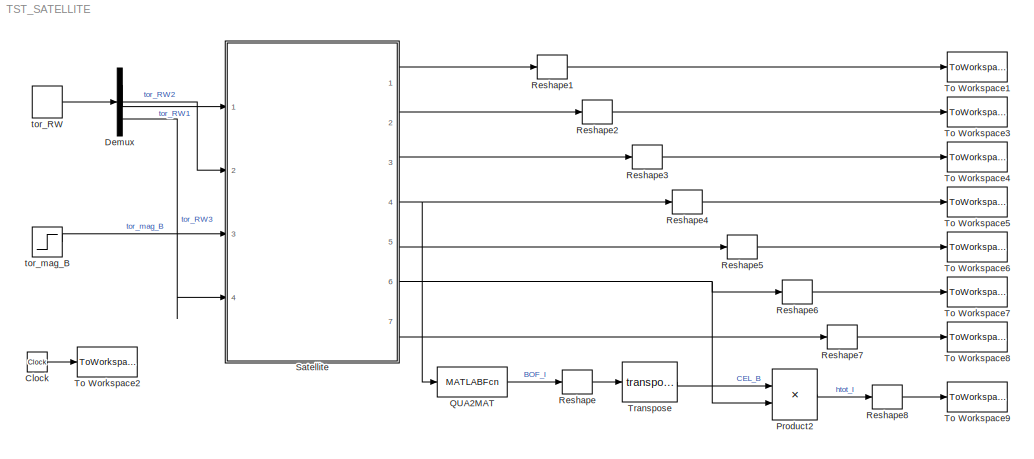
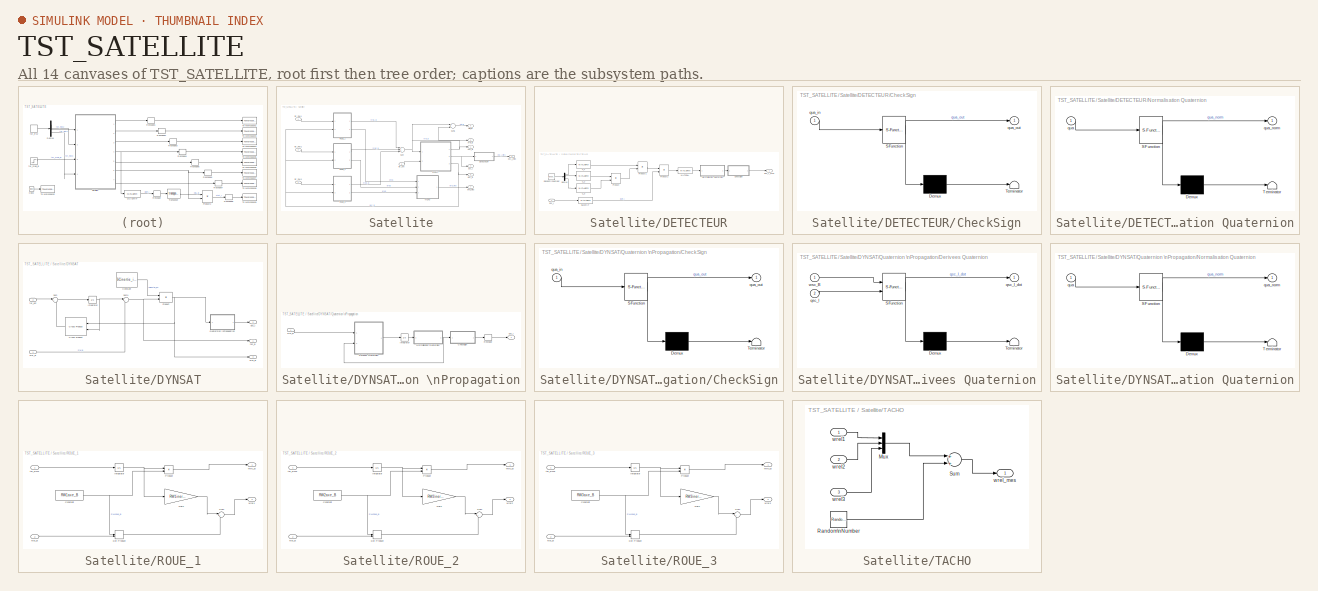
[diagram: thumbnail index - all 14 canvases of the model, root first then tree order]
MODEL TST_SATELLITE
KIND model
BLOCK [Clock] Clock
  SID = 114
BLOCK [Demux] Demux
  DisplayOption = bar
  Outputs = 3
  Ports = [1, 3]
  SID = 156
BLOCK [Product] Product2
  InputSameDT = off
  Multiplication = Matrix(*)
  OutDataTypeStr = Inherit: Inherit via internal rule
  Ports = [2, 1]
  SID = 151
  SaturateOnIntegerOverflow = off
BLOCK [MATLABFcn] QUA2MAT
  MATLABFcn = LIB_QUA_QUA2MAT
  Output1D = off
  Ports = [1, 1]
  SID = 149
BLOCK [Reshape] Reshape
  OutputDimensionality = Customize
  OutputDimensions = [3,3]
  Ports = [1, 1]
  SID = 153
BLOCK [Reshape] Reshape1
  Ports = [1, 1]
  SID = 165
BLOCK [Reshape] Reshape2
  Ports = [1, 1]
  SID = 166
BLOCK [Reshape] Reshape3
  Ports = [1, 1]
  SID = 167
BLOCK [Reshape] Reshape4
  Ports = [1, 1]
  SID = 168
BLOCK [Reshape] Reshape5
  Ports = [1, 1]
  SID = 169
BLOCK [Reshape] Reshape6
  Ports = [1, 1]
  SID = 170
BLOCK [Reshape] Reshape7
  Ports = [1, 1]
  SID = 171
BLOCK [Reshape] Reshape8
  Ports = [1, 1]
  SID = 172
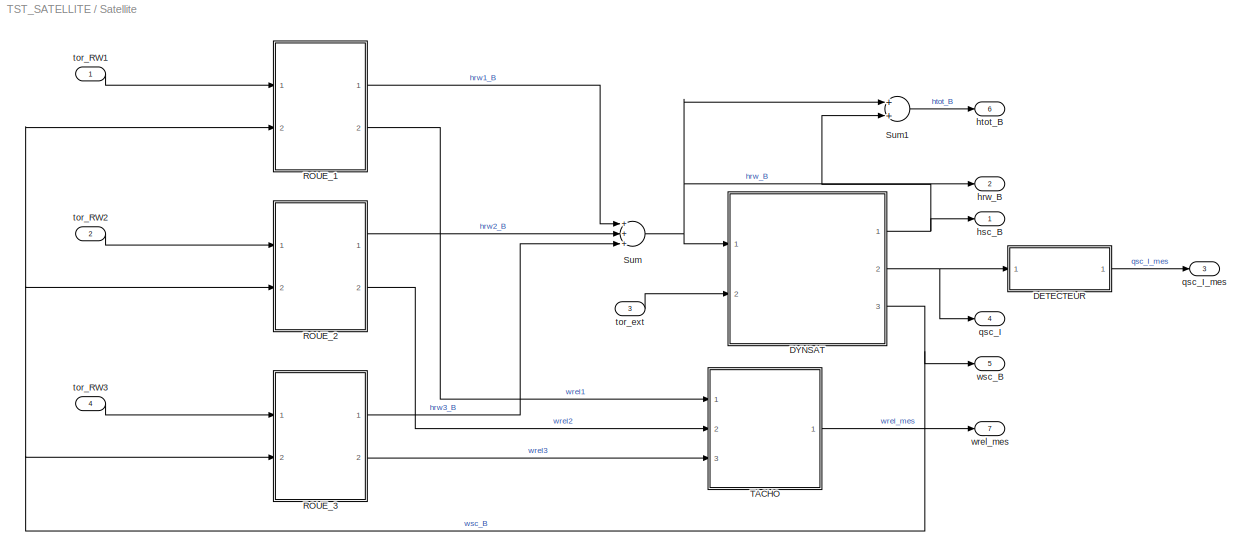
BLOCK [SubSystem] Satellite
  Ports = [4, 7]
  RequestExecContextInheritance = off
  SID = 137
  Variant = off
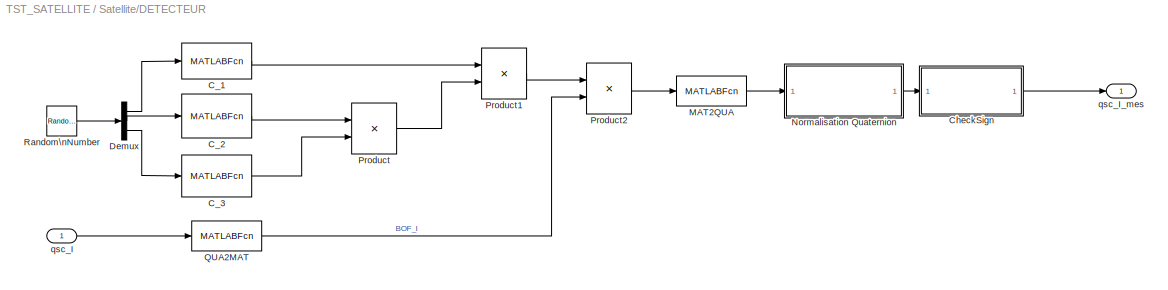
BLOCK [SubSystem] Satellite/DETECTEUR
  Ports = [1, 1]
  RequestExecContextInheritance = off
  SID = 88
  Variant = off
BLOCK [MATLABFcn] Satellite/DETECTEUR/C_1
  MATLABFcn = C_1
  Output1D = off
  OutputDimensions = [3,3]
  Ports = [1, 1]
  SID = 93
BLOCK [MATLABFcn] Satellite/DETECTEUR/C_2
  MATLABFcn = C_2
  Output1D = off
  OutputDimensions = [3,3]
  Ports = [1, 1]
  SID = 95
BLOCK [MATLABFcn] Satellite/DETECTEUR/C_3
  MATLABFcn = C_3
  Output1D = off
  OutputDimensions = [3,3]
  Ports = [1, 1]
  SID = 94
BLOCK [SubSystem] Satellite/DETECTEUR/CheckSign
  ErrorFcn = Stateflow.Translate.translate
  PermitHierarchicalResolution = ParametersOnly
  Ports = [1, 1]
  RequestExecContextInheritance = off
  SFBlockType = MATLAB Function
  SID = 103
  TreatAsAtomicUnit = on
  Variant = off
BLOCK [Demux] Satellite/DETECTEUR/CheckSign/ Demux 
  Outputs = 1
  Ports = [1, 1]
  SID = 103::22
BLOCK [S-Function] Satellite/DETECTEUR/CheckSign/ SFunction 
  EnableBusSupport = on
  FunctionName = sf_sfun
  PortCounts = [1 2]
  Ports = [1, 2]
  SFunctionDeploymentMode = off
  SID = 103::21
  Tag = Stateflow S-Function TST_SATELLITE 4
BLOCK [Terminator] Satellite/DETECTEUR/CheckSign/ Terminator 
  SID = 103::23
BLOCK [Inport] Satellite/DETECTEUR/CheckSign/qua_in
  IconDisplay = Port number
  SID = 103::1
BLOCK [Outport] Satellite/DETECTEUR/CheckSign/qua_out
  IconDisplay = Port number
  SID = 103::5
BLOCK [Demux] Satellite/DETECTEUR/Demux
  DisplayOption = bar
  Outputs = 3
  Ports = [1, 3]
  SID = 96
BLOCK [MATLABFcn] Satellite/DETECTEUR/MAT2QUA
  MATLABFcn = LIB_QUA_MAT2QUA
  Output1D = off
  OutputDimensions = [4,1]
  Ports = [1, 1]
  SID = 102
BLOCK [SubSystem] Satellite/DETECTEUR/Normalisation Quaternion
  ErrorFcn = Stateflow.Translate.translate
  PermitHierarchicalResolution = ParametersOnly
  Ports = [1, 1]
  RequestExecContextInheritance = off
  SFBlockType = MATLAB Function
  SID = 117
  TreatAsAtomicUnit = on
  Variant = off
BLOCK [Demux] Satellite/DETECTEUR/Normalisation Quaternion/ Demux 
  Outputs = 1
  Ports = [1, 1]
  SID = 117::22
BLOCK [S-Function] Satellite/DETECTEUR/Normalisation Quaternion/ SFunction 
  EnableBusSupport = on
  FunctionName = sf_sfun
  PortCounts = [1 2]
  Ports = [1, 2]
  SFunctionDeploymentMode = off
  SID = 117::21
  Tag = Stateflow S-Function TST_SATELLITE 5
BLOCK [Terminator] Satellite/DETECTEUR/Normalisation Quaternion/ Terminator 
  SID = 117::23
BLOCK [Inport] Satellite/DETECTEUR/Normalisation Quaternion/qua
  IconDisplay = Port number
  SID = 117::1
BLOCK [Outport] Satellite/DETECTEUR/Normalisation Quaternion/qua_norm
  IconDisplay = Port number
  SID = 117::5
BLOCK [Product] Satellite/DETECTEUR/Product
  InputSameDT = off
  Multiplication = Matrix(*)
  OutDataTypeStr = Inherit: Inherit via internal rule
  Ports = [2, 1]
  SID = 97
  SaturateOnIntegerOverflow = off
BLOCK [Product] Satellite/DETECTEUR/Product1
  InputSameDT = off
  Multiplication = Matrix(*)
  OutDataTypeStr = Inherit: Inherit via internal rule
  Ports = [2, 1]
  SID = 98
  SaturateOnIntegerOverflow = off
BLOCK [Product] Satellite/DETECTEUR/Product2
  InputSameDT = off
  Multiplication = Matrix(*)
  OutDataTypeStr = Inherit: Inherit via internal rule
  Ports = [2, 1]
  SID = 100
  SaturateOnIntegerOverflow = off
BLOCK [MATLABFcn] Satellite/DETECTEUR/QUA2MAT
  MATLABFcn = LIB_QUA_QUA2MAT
  Output1D = off
  OutputDimensions = [3,3]
  Ports = [1, 1]
  SID = 99
BLOCK [RandomNumber] Satellite/DETECTEUR/Random\nNumber
  Mean = [0, 0, 0]
  SID = 92
  SampleTime = 0.01
  Seed = [293343544, 2098503295, 0394802]
  Variance = [1, 1, 1]/1000
  VectorParams1D = off
BLOCK [Inport] Satellite/DETECTEUR/qsc_I
  IconDisplay = Port number
  SID = 89
BLOCK [Outport] Satellite/DETECTEUR/qsc_I_mes
  IconDisplay = Port number
  SID = 90
BLOCK [SubSystem] Satellite/DYNSAT
  Ports = [2, 3]
  RequestExecContextInheritance = off
  SID = 61
  Variant = off
BLOCK [Constant] Satellite/DYNSAT/Constant
  SID = 68
  Value = SCinertie_inv
  VectorParams1D = off
BLOCK [Reference] Satellite/DYNSAT/Cross Product  REF=vrlib/Utilities/Cross Product
  Ports = [2, 1]
  SID = 175
  SourceBlock = vrlib/Utilities/Cross Product
  SourceType = Cross Product
BLOCK [Integrator] Satellite/DYNSAT/Integrator
  InitialCondition = htot_B_ini
  Ports = [1, 1]
  SID = 191
BLOCK [Product] Satellite/DYNSAT/Product
  InputSameDT = off
  Multiplication = Matrix(*)
  OutDataTypeStr = Inherit: Inherit via internal rule
  Ports = [2, 1]
  RndMeth = Floor
  SID = 193
  SaturateOnIntegerOverflow = off
BLOCK [SubSystem] Satellite/DYNSAT/Quaternion \nPropagation
  Ports = [1, 1]
  RequestExecContextInheritance = off
  SID = 72
  Variant = off
BLOCK [SubSystem] Satellite/DYNSAT/Quaternion \nPropagation/CheckSign
  ErrorFcn = Stateflow.Translate.translate
  PermitHierarchicalResolution = ParametersOnly
  Ports = [1, 1]
  RequestExecContextInheritance = off
  SFBlockType = MATLAB Function
  SID = 82
  TreatAsAtomicUnit = on
  Variant = off
BLOCK [Demux] Satellite/DYNSAT/Quaternion \nPropagation/CheckSign/ Demux 
  Outputs = 1
  Ports = [1, 1]
  SID = 82::22
BLOCK [S-Function] Satellite/DYNSAT/Quaternion \nPropagation/CheckSign/ SFunction 
  EnableBusSupport = on
  FunctionName = sf_sfun
  PortCounts = [1 2]
  Ports = [1, 2]
  SFunctionDeploymentMode = off
  SID = 82::21
  Tag = Stateflow S-Function TST_SATELLITE 3
BLOCK [Terminator] Satellite/DYNSAT/Quaternion \nPropagation/CheckSign/ Terminator 
  SID = 82::23
BLOCK [Inport] Satellite/DYNSAT/Quaternion \nPropagation/CheckSign/qua_in
  IconDisplay = Port number
  SID = 82::1
BLOCK [Outport] Satellite/DYNSAT/Quaternion \nPropagation/CheckSign/qua_out
  IconDisplay = Port number
  SID = 82::5
BLOCK [SubSystem] Satellite/DYNSAT/Quaternion \nPropagation/Derivees Quaternion
  ErrorFcn = Stateflow.Translate.translate
  PermitHierarchicalResolution = ParametersOnly
  Ports = [2, 1]
  RequestExecContextInheritance = off
  SFBlockType = MATLAB Function
  SID = 78
  TreatAsAtomicUnit = on
  Variant = off
BLOCK [Demux] Satellite/DYNSAT/Quaternion \nPropagation/Derivees Quaternion/ Demux 
  Outputs = 1
  Ports = [1, 1]
  SID = 78::23
BLOCK [S-Function] Satellite/DYNSAT/Quaternion \nPropagation/Derivees Quaternion/ SFunction 
  EnableBusSupport = on
  FunctionName = sf_sfun
  PortCounts = [2 2]
  Ports = [2, 2]
  SFunctionDeploymentMode = off
  SID = 78::22
  Tag = Stateflow S-Function TST_SATELLITE 2
BLOCK [Terminator] Satellite/DYNSAT/Quaternion \nPropagation/Derivees Quaternion/ Terminator 
  SID = 78::24
BLOCK [Inport] Satellite/DYNSAT/Quaternion \nPropagation/Derivees Quaternion/qsc_I
  IconDisplay = Port number
  Port = 2
  SID = 78::18
BLOCK [Outport] Satellite/DYNSAT/Quaternion \nPropagation/Derivees Quaternion/qsc_I_dot
  IconDisplay = Port number
  SID = 78::5
BLOCK [Inport] Satellite/DYNSAT/Quaternion \nPropagation/Derivees Quaternion/wsc_B
  IconDisplay = Port number
  SID = 78::1
BLOCK [Integrator] Satellite/DYNSAT/Quaternion \nPropagation/Integrator
  InitialCondition = qsc_I_ini
  Ports = [1, 1]
  SID = 77
BLOCK [SubSystem] Satellite/DYNSAT/Quaternion \nPropagation/Normalisation Quaternion
  ErrorFcn = Stateflow.Translate.translate
  PermitHierarchicalResolution = ParametersOnly
  Ports = [1, 1]
  RequestExecContextInheritance = off
  SFBlockType = MATLAB Function
  SID = 81
  TreatAsAtomicUnit = on
  Variant = off
BLOCK [Demux] Satellite/DYNSAT/Quaternion \nPropagation/Normalisation Quaternion/ Demux 
  Outputs = 1
  Ports = [1, 1]
  SID = 81::22
BLOCK [S-Function] Satellite/DYNSAT/Quaternion \nPropagation/Normalisation Quaternion/ SFunction 
  EnableBusSupport = on
  FunctionName = sf_sfun
  PortCounts = [1 2]
  Ports = [1, 2]
  SFunctionDeploymentMode = off
  SID = 81::21
  Tag = Stateflow S-Function TST_SATELLITE 1
BLOCK [Terminator] Satellite/DYNSAT/Quaternion \nPropagation/Normalisation Quaternion/ Terminator 
  SID = 81::23
BLOCK [Inport] Satellite/DYNSAT/Quaternion \nPropagation/Normalisation Quaternion/qua
  IconDisplay = Port number
  SID = 81::1
BLOCK [Outport] Satellite/DYNSAT/Quaternion \nPropagation/Normalisation Quaternion/qua_norm
  IconDisplay = Port number
  SID = 81::5
BLOCK [Reshape] Satellite/DYNSAT/Quaternion \nPropagation/Reshape
  OutputDimensionality = Column vector (2-D)
  Ports = [1, 1]
  SID = 80
BLOCK [Outport] Satellite/DYNSAT/Quaternion \nPropagation/qsc_I
  IconDisplay = Port number
  SID = 74
BLOCK [Inport] Satellite/DYNSAT/Quaternion \nPropagation/wsc_B
  IconDisplay = Port number
  SID = 73
BLOCK [Sum] Satellite/DYNSAT/Sum
  IconShape = round
  InputSameDT = off
  Inputs = |+-
  OutDataTypeStr = Inherit: Inherit via internal rule
  Ports = [2, 1]
  SID = 190
  SaturateOnIntegerOverflow = off
BLOCK [Sum] Satellite/DYNSAT/Sum1
  IconShape = round
  InputSameDT = off
  Inputs = |+-
  OutDataTypeStr = Inherit: Inherit via internal rule
  Ports = [2, 1]
  SID = 192
  SaturateOnIntegerOverflow = off
BLOCK [Inport] Satellite/DYNSAT/hrw_B
  IconDisplay = Port number
  SID = 62
BLOCK [Outport] Satellite/DYNSAT/hsc_B
  IconDisplay = Port number
  SID = 63
BLOCK [Outport] Satellite/DYNSAT/qsc_I
  IconDisplay = Port number
  Port = 2
  SID = 83
BLOCK [Inport] Satellite/DYNSAT/tor_ext
  IconDisplay = Port number
  Port = 2
  SID = 65
BLOCK [Outport] Satellite/DYNSAT/wsc_B
  IconDisplay = Port number
  Port = 3
  SID = 84
BLOCK [SubSystem] Satellite/ROUE_1
  Ports = [2, 2]
  RequestExecContextInheritance = off
  SID = 12
  Variant = off
BLOCK [Constant] Satellite/ROUE_1/Constant
  SID = 2
  Value = RW1axe_B
  VectorParams1D = off
BLOCK [DotProduct] Satellite/ROUE_1/Dot Product
  OutDataTypeStr = Inherit: Inherit via internal rule
  SID = 177
BLOCK [Gain] Satellite/ROUE_1/Gain
  Gain = RW1inertie_inv
  OutDataTypeStr = Inherit: Inherit via internal rule
  ParamDataTypeStr = Inherit: Inherit via internal rule
  SID = 4
  SaturateOnIntegerOverflow = off
BLOCK [Integrator] Satellite/ROUE_1/Integrator
  InitialCondition = hrw1_ini
  Ports = [1, 1]
  SID = 176
BLOCK [Product] Satellite/ROUE_1/Product
  InputSameDT = off
  OutDataTypeStr = Inherit: Inherit via internal rule
  Ports = [2, 1]
  RndMeth = Floor
  SID = 178
  SaturateOnIntegerOverflow = off
BLOCK [Sum] Satellite/ROUE_1/Sum
  IconShape = round
  InputSameDT = off
  Inputs = |+-
  OutDataTypeStr = Inherit: Inherit via internal rule
  Ports = [2, 1]
  SID = 179
  SaturateOnIntegerOverflow = off
BLOCK [Outport] Satellite/ROUE_1/hrw1_B
  IconDisplay = Port number
  SID = 13
BLOCK [Inport] Satellite/ROUE_1/tor_RW1
  IconDisplay = Port number
  SID = 14
BLOCK [Outport] Satellite/ROUE_1/wrel1
  IconDisplay = Port number
  Port = 2
  SID = 15
BLOCK [Inport] Satellite/ROUE_1/wsc_B
  IconDisplay = Port number
  Port = 2
  PortDimensions = [3,1]
  SID = 16
BLOCK [SubSystem] Satellite/ROUE_2
  Ports = [2, 2]
  RequestExecContextInheritance = off
  SID = 19
  Variant = off
BLOCK [Constant] Satellite/ROUE_2/Constant
  SID = 22
  Value = RW2axe_B
  VectorParams1D = off
BLOCK [DotProduct] Satellite/ROUE_2/Dot Product
  OutDataTypeStr = Inherit: Inherit via internal rule
  SID = 180
BLOCK [Gain] Satellite/ROUE_2/Gain
  Gain = RW2inertie_inv
  OutDataTypeStr = Inherit: Inherit via internal rule
  ParamDataTypeStr = Inherit: Inherit via internal rule
  SID = 24
  SaturateOnIntegerOverflow = off
BLOCK [Integrator] Satellite/ROUE_2/Integrator
  InitialCondition = hrw2_ini
  Ports = [1, 1]
  SID = 182
BLOCK [Product] Satellite/ROUE_2/Product
  InputSameDT = off
  OutDataTypeStr = Inherit: Inherit via internal rule
  Ports = [2, 1]
  RndMeth = Floor
  SID = 183
  SaturateOnIntegerOverflow = off
BLOCK [Sum] Satellite/ROUE_2/Sum
  IconShape = round
  InputSameDT = off
  Inputs = |+-
  OutDataTypeStr = Inherit: Inherit via internal rule
  Ports = [2, 1]
  SID = 184
  SaturateOnIntegerOverflow = off
BLOCK [Outport] Satellite/ROUE_2/hrw2_B
  IconDisplay = Port number
  SID = 28
BLOCK [Inport] Satellite/ROUE_2/tor_RW2
  IconDisplay = Port number
  SID = 20
BLOCK [Outport] Satellite/ROUE_2/wrel2
  IconDisplay = Port number
  Port = 2
  SID = 29
BLOCK [Inport] Satellite/ROUE_2/wsc_B
  IconDisplay = Port number
  Port = 2
  PortDimensions = [3,1]
  SID = 21
BLOCK [SubSystem] Satellite/ROUE_3
  Ports = [2, 2]
  RequestExecContextInheritance = off
  SID = 34
  Variant = off
BLOCK [Constant] Satellite/ROUE_3/Constant
  SID = 37
  Value = RW3axe_B
  VectorParams1D = off
BLOCK [DotProduct] Satellite/ROUE_3/Dot Product
  OutDataTypeStr = Inherit: Inherit via internal rule
  SID = 185
BLOCK [Gain] Satellite/ROUE_3/Gain
  Gain = RW3inertie_inv
  OutDataTypeStr = Inherit: Inherit via internal rule
  ParamDataTypeStr = Inherit: Inherit via internal rule
  SID = 39
  SaturateOnIntegerOverflow = off
BLOCK [Integrator] Satellite/ROUE_3/Integrator
  InitialCondition = hrw3_ini
  Ports = [1, 1]
  SID = 187
BLOCK [Product] Satellite/ROUE_3/Product
  InputSameDT = off
  OutDataTypeStr = Inherit: Inherit via internal rule
  Ports = [2, 1]
  RndMeth = Floor
  SID = 188
  SaturateOnIntegerOverflow = off
BLOCK [Sum] Satellite/ROUE_3/Sum
  IconShape = round
  InputSameDT = off
  Inputs = |+-
  OutDataTypeStr = Inherit: Inherit via internal rule
  Ports = [2, 1]
  SID = 189
  SaturateOnIntegerOverflow = off
BLOCK [Outport] Satellite/ROUE_3/hrw3_B
  IconDisplay = Port number
  SID = 43
BLOCK [Inport] Satellite/ROUE_3/tor_RW3
  IconDisplay = Port number
  SID = 35
BLOCK [Outport] Satellite/ROUE_3/wrel3
  IconDisplay = Port number
  Port = 2
  SID = 44
BLOCK [Inport] Satellite/ROUE_3/wsc_B
  IconDisplay = Port number
  Port = 2
  PortDimensions = [3,1]
  SID = 36
BLOCK [Sum] Satellite/Sum
  InputSameDT = off
  Inputs = +++
  OutDataTypeStr = Inherit: Inherit via internal rule
  Ports = [3, 1]
  SID = 47
  SaturateOnIntegerOverflow = off
BLOCK [Sum] Satellite/Sum1
  InputSameDT = off
  OutDataTypeStr = Inherit: Inherit via internal rule
  Ports = [2, 1]
  SID = 85
  SaturateOnIntegerOverflow = off
BLOCK [SubSystem] Satellite/TACHO
  Ports = [3, 1]
  RequestExecContextInheritance = off
  SID = 48
  Variant = off
BLOCK [Mux] Satellite/TACHO/Mux
  DisplayOption = bar
  Inputs = 3
  Ports = [3, 1]
  SID = 59
BLOCK [RandomNumber] Satellite/TACHO/Random\nNumber
  Mean = [0, 0, 0]
  SID = 57
  SampleTime = 0.1
  Seed = [293343544, 2098503295, 0394802]
  Variance = [1, 1, 1]
BLOCK [Sum] Satellite/TACHO/Sum
  InputSameDT = off
  OutDataTypeStr = Inherit: Inherit via internal rule
  Ports = [2, 1]
  SID = 58
  SaturateOnIntegerOverflow = off
BLOCK [Inport] Satellite/TACHO/wrel1
  IconDisplay = Port number
  SID = 49
BLOCK [Inport] Satellite/TACHO/wrel2
  IconDisplay = Port number
  Port = 2
  SID = 51
BLOCK [Inport] Satellite/TACHO/wrel3
  IconDisplay = Port number
  Port = 3
  SID = 52
BLOCK [Outport] Satellite/TACHO/wrel_mes
  IconDisplay = Port number
  SID = 50
BLOCK [Outport] Satellite/hrw_B
  IconDisplay = Port number
  Port = 2
  SID = 140
BLOCK [Outport] Satellite/hsc_B
  IconDisplay = Port number
  SID = 139
BLOCK [Outport] Satellite/htot_B
  IconDisplay = Port number
  Port = 6
  SID = 146
BLOCK [Outport] Satellite/qsc_I
  IconDisplay = Port number
  Port = 4
  SID = 144
BLOCK [Outport] Satellite/qsc_I_mes
  IconDisplay = Port number
  Port = 3
  SID = 142
BLOCK [Inport] Satellite/tor_RW1
  IconDisplay = Port number
  SID = 138
BLOCK [Inport] Satellite/tor_RW2
  IconDisplay = Port number
  Port = 2
  SID = 141
BLOCK [Inport] Satellite/tor_RW3
  IconDisplay = Port number
  Port = 4
  SID = 147
BLOCK [Inport] Satellite/tor_ext
  IconDisplay = Port number
  Port = 3
  PortDimensions = [3,1]
  SID = 143
BLOCK [Outport] Satellite/wrel_mes
  IconDisplay = Port number
  Port = 7
  SID = 148
BLOCK [Outport] Satellite/wsc_B
  IconDisplay = Port number
  Port = 5
  SID = 145
BLOCK [ToWorkspace] To Workspace1
  MaxDataPoints = inf
  Ports = [1]
  SID = 157
  SampleTime = -1
  VariableName = hsc_B
BLOCK [ToWorkspace] To Workspace2
  MaxDataPoints = inf
  Ports = [1]
  SID = 115
  SampleTime = -1
  VariableName = stime
BLOCK [ToWorkspace] To Workspace3
  MaxDataPoints = inf
  Ports = [1]
  SID = 158
  SampleTime = -1
  VariableName = hrw_B
BLOCK [ToWorkspace] To Workspace4
  MaxDataPoints = inf
  Ports = [1]
  SID = 159
  SampleTime = -1
  VariableName = qsc_I_mes
BLOCK [ToWorkspace] To Workspace5
  MaxDataPoints = inf
  Ports = [1]
  SID = 160
  SampleTime = -1
  VariableName = qsc_I
BLOCK [ToWorkspace] To Workspace6
  MaxDataPoints = inf
  Ports = [1]
  SID = 161
  SampleTime = -1
  VariableName = wsc_B
BLOCK [ToWorkspace] To Workspace7
  MaxDataPoints = inf
  Ports = [1]
  SID = 162
  SampleTime = -1
  VariableName = htot_B
BLOCK [ToWorkspace] To Workspace8
  MaxDataPoints = inf
  Ports = [1]
  SID = 163
  SampleTime = -1
  VariableName = wrel_mes
BLOCK [ToWorkspace] To Workspace9
  MaxDataPoints = inf
  Ports = [1]
  SID = 164
  SampleTime = -1
  VariableName = htot_I
BLOCK [Math] Transpose 
  Operator = transpose
  Ports = [1, 1]
  SID = 150
BLOCK [DiscretePulseGenerator] tor_RW
  Amplitude = [0.04, -0.03, 0.05]
  Period = [10, 10, 10]
  PhaseDelay = [2.0, 4.0, 6.0]
  Ports = [0, 1]
  PulseType = Time based
  PulseWidth = [20, 30, 40]
  SID = 154
  VectorParams1D = off
BLOCK [Step] tor_mag_B
  After = tor_mag_B
  Before = [0, 0, 0]'
  SID = 155
  SampleTime = 0
  Time = [10, 10, 10]'
  VectorParams1D = off
LINE Clock:1 -> To Workspace2:1
LINE Demux:1 -> Satellite:1
LINE Demux:2 -> Satellite:2
LINE Demux:3 -> Satellite:4
LINE Product2:1 -> Reshape8:1
LINE QUA2MAT:1 -> Reshape:1
LINE Reshape1:1 -> To Workspace1:1
LINE Reshape2:1 -> To Workspace3:1
LINE Reshape3:1 -> To Workspace4:1
LINE Reshape4:1 -> To Workspace5:1
LINE Reshape5:1 -> To Workspace6:1
LINE Reshape6:1 -> To Workspace7:1
LINE Reshape7:1 -> To Workspace8:1
LINE Reshape8:1 -> To Workspace9:1
LINE Reshape:1 -> Transpose :1
LINE Satellite/DETECTEUR/C_1:1 -> Satellite/DETECTEUR/Product1:1
LINE Satellite/DETECTEUR/C_2:1 -> Satellite/DETECTEUR/Product:1
LINE Satellite/DETECTEUR/C_3:1 -> Satellite/DETECTEUR/Product:2
LINE Satellite/DETECTEUR/CheckSign/ Demux :1 -> Satellite/DETECTEUR/CheckSign/ Terminator :1
LINE Satellite/DETECTEUR/CheckSign/ SFunction :1 -> Satellite/DETECTEUR/CheckSign/ Demux :1
LINE Satellite/DETECTEUR/CheckSign/ SFunction :2 -> Satellite/DETECTEUR/CheckSign/qua_out:1
LINE Satellite/DETECTEUR/CheckSign/qua_in:1 -> Satellite/DETECTEUR/CheckSign/ SFunction :1
LINE Satellite/DETECTEUR/CheckSign:1 -> Satellite/DETECTEUR/qsc_I_mes:1
LINE Satellite/DETECTEUR/Demux:1 -> Satellite/DETECTEUR/C_1:1
LINE Satellite/DETECTEUR/Demux:2 -> Satellite/DETECTEUR/C_2:1
LINE Satellite/DETECTEUR/Demux:3 -> Satellite/DETECTEUR/C_3:1
LINE Satellite/DETECTEUR/MAT2QUA:1 -> Satellite/DETECTEUR/Normalisation Quaternion:1
LINE Satellite/DETECTEUR/Normalisation Quaternion/ Demux :1 -> Satellite/DETECTEUR/Normalisation Quaternion/ Terminator :1
LINE Satellite/DETECTEUR/Normalisation Quaternion/ SFunction :1 -> Satellite/DETECTEUR/Normalisation Quaternion/ Demux :1
LINE Satellite/DETECTEUR/Normalisation Quaternion/ SFunction :2 -> Satellite/DETECTEUR/Normalisation Quaternion/qua_norm:1
LINE Satellite/DETECTEUR/Normalisation Quaternion/qua:1 -> Satellite/DETECTEUR/Normalisation Quaternion/ SFunction :1
LINE Satellite/DETECTEUR/Normalisation Quaternion:1 -> Satellite/DETECTEUR/CheckSign:1
LINE Satellite/DETECTEUR/Product1:1 -> Satellite/DETECTEUR/Product2:1
LINE Satellite/DETECTEUR/Product2:1 -> Satellite/DETECTEUR/MAT2QUA:1
LINE Satellite/DETECTEUR/Product:1 -> Satellite/DETECTEUR/Product1:2
LINE Satellite/DETECTEUR/QUA2MAT:1 -> Satellite/DETECTEUR/Product2:2
LINE Satellite/DETECTEUR/Random\nNumber:1 -> Satellite/DETECTEUR/Demux:1
LINE Satellite/DETECTEUR/qsc_I:1 -> Satellite/DETECTEUR/QUA2MAT:1
LINE Satellite/DETECTEUR:1 -> Satellite/qsc_I_mes:1
LINE Satellite/DYNSAT/Constant:1 -> Satellite/DYNSAT/Product:1
LINE Satellite/DYNSAT/Cross Product:1 -> Satellite/DYNSAT/Sum:2
NET Satellite/DYNSAT/Integrator:1 -> Satellite/DYNSAT/Cross Product:2, Satellite/DYNSAT/Sum1:1
NET Satellite/DYNSAT/Product:1 -> Satellite/DYNSAT/Cross Product:1, Satellite/DYNSAT/Quaternion \nPropagation:1, Satellite/DYNSAT/wsc_B:1
LINE Satellite/DYNSAT/Quaternion \nPropagation/CheckSign/ Demux :1 -> Satellite/DYNSAT/Quaternion \nPropagation/CheckSign/ Terminator :1
LINE Satellite/DYNSAT/Quaternion \nPropagation/CheckSign/ SFunction :1 -> Satellite/DYNSAT/Quaternion \nPropagation/CheckSign/ Demux :1
LINE Satellite/DYNSAT/Quaternion \nPropagation/CheckSign/ SFunction :2 -> Satellite/DYNSAT/Quaternion \nPropagation/CheckSign/qua_out:1
LINE Satellite/DYNSAT/Quaternion \nPropagation/CheckSign/qua_in:1 -> Satellite/DYNSAT/Quaternion \nPropagation/CheckSign/ SFunction :1
LINE Satellite/DYNSAT/Quaternion \nPropagation/CheckSign:1 -> Satellite/DYNSAT/Quaternion \nPropagation/Reshape:1
LINE Satellite/DYNSAT/Quaternion \nPropagation/Derivees Quaternion/ Demux :1 -> Satellite/DYNSAT/Quaternion \nPropagation/Derivees Quaternion/ Terminator :1
LINE Satellite/DYNSAT/Quaternion \nPropagation/Derivees Quaternion/ SFunction :1 -> Satellite/DYNSAT/Quaternion \nPropagation/Derivees Quaternion/ Demux :1
LINE Satellite/DYNSAT/Quaternion \nPropagation/Derivees Quaternion/ SFunction :2 -> Satellite/DYNSAT/Quaternion \nPropagation/Derivees Quaternion/qsc_I_dot:1
LINE Satellite/DYNSAT/Quaternion \nPropagation/Derivees Quaternion/qsc_I:1 -> Satellite/DYNSAT/Quaternion \nPropagation/Derivees Quaternion/ SFunction :2
LINE Satellite/DYNSAT/Quaternion \nPropagation/Derivees Quaternion/wsc_B:1 -> Satellite/DYNSAT/Quaternion \nPropagation/Derivees Quaternion/ SFunction :1
LINE Satellite/DYNSAT/Quaternion \nPropagation/Derivees Quaternion:1 -> Satellite/DYNSAT/Quaternion \nPropagation/Integrator:1
LINE Satellite/DYNSAT/Quaternion \nPropagation/Integrator:1 -> Satellite/DYNSAT/Quaternion \nPropagation/Normalisation Quaternion:1
LINE Satellite/DYNSAT/Quaternion \nPropagation/Normalisation Quaternion/ Demux :1 -> Satellite/DYNSAT/Quaternion \nPropagation/Normalisation Quaternion/ Terminator :1
LINE Satellite/DYNSAT/Quaternion \nPropagation/Normalisation Quaternion/ SFunction :1 -> Satellite/DYNSAT/Quaternion \nPropagation/Normalisation Quaternion/ Demux :1
LINE Satellite/DYNSAT/Quaternion \nPropagation/Normalisation Quaternion/ SFunction :2 -> Satellite/DYNSAT/Quaternion \nPropagation/Normalisation Quaternion/qua_norm:1
LINE Satellite/DYNSAT/Quaternion \nPropagation/Normalisation Quaternion/qua:1 -> Satellite/DYNSAT/Quaternion \nPropagation/Normalisation Quaternion/ SFunction :1
NET Satellite/DYNSAT/Quaternion \nPropagation/Normalisation Quaternion:1 -> Satellite/DYNSAT/Quaternion \nPropagation/CheckSign:1, Satellite/DYNSAT/Quaternion \nPropagation/Derivees Quaternion:2
LINE Satellite/DYNSAT/Quaternion \nPropagation/Reshape:1 -> Satellite/DYNSAT/Quaternion \nPropagation/qsc_I:1
LINE Satellite/DYNSAT/Quaternion \nPropagation/wsc_B:1 -> Satellite/DYNSAT/Quaternion \nPropagation/Derivees Quaternion:1
LINE Satellite/DYNSAT/Quaternion \nPropagation:1 -> Satellite/DYNSAT/qsc_I:1
NET Satellite/DYNSAT/Sum1:1 -> Satellite/DYNSAT/Product:2, Satellite/DYNSAT/hsc_B:1
LINE Satellite/DYNSAT/Sum:1 -> Satellite/DYNSAT/Integrator:1
LINE Satellite/DYNSAT/hrw_B:1 -> Satellite/DYNSAT/Sum1:2
LINE Satellite/DYNSAT/tor_ext:1 -> Satellite/DYNSAT/Sum:1
NET Satellite/DYNSAT:1 -> Satellite/Sum1:2, Satellite/hsc_B:1
NET Satellite/DYNSAT:2 -> Satellite/DETECTEUR:1, Satellite/qsc_I:1
NET Satellite/DYNSAT:3 -> Satellite/ROUE_1:2, Satellite/ROUE_2:2, Satellite/ROUE_3:2, Satellite/wsc_B:1
NET Satellite/ROUE_1/Constant:1 -> Satellite/ROUE_1/Dot Product:1, Satellite/ROUE_1/Product:2
LINE Satellite/ROUE_1/Dot Product:1 -> Satellite/ROUE_1/Sum:2
LINE Satellite/ROUE_1/Gain:1 -> Satellite/ROUE_1/Sum:1
NET Satellite/ROUE_1/Integrator:1 -> Satellite/ROUE_1/Gain:1, Satellite/ROUE_1/Product:1
LINE Satellite/ROUE_1/Product:1 -> Satellite/ROUE_1/hrw1_B:1
LINE Satellite/ROUE_1/Sum:1 -> Satellite/ROUE_1/wrel1:1
LINE Satellite/ROUE_1/tor_RW1:1 -> Satellite/ROUE_1/Integrator:1
LINE Satellite/ROUE_1/wsc_B:1 -> Satellite/ROUE_1/Dot Product:2
LINE Satellite/ROUE_1:1 -> Satellite/Sum:1
LINE Satellite/ROUE_1:2 -> Satellite/TACHO:1
NET Satellite/ROUE_2/Constant:1 -> Satellite/ROUE_2/Dot Product:1, Satellite/ROUE_2/Product:2
LINE Satellite/ROUE_2/Dot Product:1 -> Satellite/ROUE_2/Sum:2
LINE Satellite/ROUE_2/Gain:1 -> Satellite/ROUE_2/Sum:1
NET Satellite/ROUE_2/Integrator:1 -> Satellite/ROUE_2/Gain:1, Satellite/ROUE_2/Product:1
LINE Satellite/ROUE_2/Product:1 -> Satellite/ROUE_2/hrw2_B:1
LINE Satellite/ROUE_2/Sum:1 -> Satellite/ROUE_2/wrel2:1
LINE Satellite/ROUE_2/tor_RW2:1 -> Satellite/ROUE_2/Integrator:1
LINE Satellite/ROUE_2/wsc_B:1 -> Satellite/ROUE_2/Dot Product:2
LINE Satellite/ROUE_2:1 -> Satellite/Sum:2
LINE Satellite/ROUE_2:2 -> Satellite/TACHO:2
NET Satellite/ROUE_3/Constant:1 -> Satellite/ROUE_3/Dot Product:1, Satellite/ROUE_3/Product:2
LINE Satellite/ROUE_3/Dot Product:1 -> Satellite/ROUE_3/Sum:2
LINE Satellite/ROUE_3/Gain:1 -> Satellite/ROUE_3/Sum:1
NET Satellite/ROUE_3/Integrator:1 -> Satellite/ROUE_3/Gain:1, Satellite/ROUE_3/Product:1
LINE Satellite/ROUE_3/Product:1 -> Satellite/ROUE_3/hrw3_B:1
LINE Satellite/ROUE_3/Sum:1 -> Satellite/ROUE_3/wrel3:1
LINE Satellite/ROUE_3/tor_RW3:1 -> Satellite/ROUE_3/Integrator:1
LINE Satellite/ROUE_3/wsc_B:1 -> Satellite/ROUE_3/Dot Product:2
LINE Satellite/ROUE_3:1 -> Satellite/Sum:3
LINE Satellite/ROUE_3:2 -> Satellite/TACHO:3
LINE Satellite/Sum1:1 -> Satellite/htot_B:1
NET Satellite/Sum:1 -> Satellite/DYNSAT:1, Satellite/Sum1:1, Satellite/hrw_B:1
LINE Satellite/TACHO/Mux:1 -> Satellite/TACHO/Sum:1
LINE Satellite/TACHO/Random\nNumber:1 -> Satellite/TACHO/Sum:2
LINE Satellite/TACHO/Sum:1 -> Satellite/TACHO/wrel_mes:1
LINE Satellite/TACHO/wrel1:1 -> Satellite/TACHO/Mux:1
LINE Satellite/TACHO/wrel2:1 -> Satellite/TACHO/Mux:2
LINE Satellite/TACHO/wrel3:1 -> Satellite/TACHO/Mux:3
LINE Satellite/TACHO:1 -> Satellite/wrel_mes:1
LINE Satellite/tor_RW1:1 -> Satellite/ROUE_1:1
LINE Satellite/tor_RW2:1 -> Satellite/ROUE_2:1
LINE Satellite/tor_RW3:1 -> Satellite/ROUE_3:1
LINE Satellite/tor_ext:1 -> Satellite/DYNSAT:2
LINE Satellite:1 -> Reshape1:1
LINE Satellite:2 -> Reshape2:1
LINE Satellite:3 -> Reshape3:1
NET Satellite:4 -> QUA2MAT:1, Reshape4:1
LINE Satellite:5 -> Reshape5:1
NET Satellite:6 -> Product2:2, Reshape6:1
LINE Satellite:7 -> Reshape7:1
LINE Transpose :1 -> Product2:1
LINE tor_RW:1 -> Demux:1
LINE tor_mag_B:1 -> Satellite:3
note: NET lines group one-source signal fan-out (src -> all destinations, sorted); 1:1 wires keep LINE
CHART Satellite/DYNSAT/Quaternion \nPropagation/Normalisation Quaternion states=1 transitions=1
  STATE_LABEL 'eML_blk_kernel()'
CHART Satellite/DYNSAT/Quaternion \nPropagation/Derivees Quaternion states=1 transitions=1
  STATE_LABEL 'eML_blk_kernel()'
CHART Satellite/DYNSAT/Quaternion \nPropagation/CheckSign states=1 transitions=1
  STATE_LABEL 'eML_blk_kernel()'
CHART Satellite/DETECTEUR/CheckSign states=1 transitions=1
  STATE_LABEL 'eML_blk_kernel()'
CHART Satellite/DETECTEUR/Normalisation Quaternion states=1 transitions=1
  STATE_LABEL 'eML_blk_kernel()'
